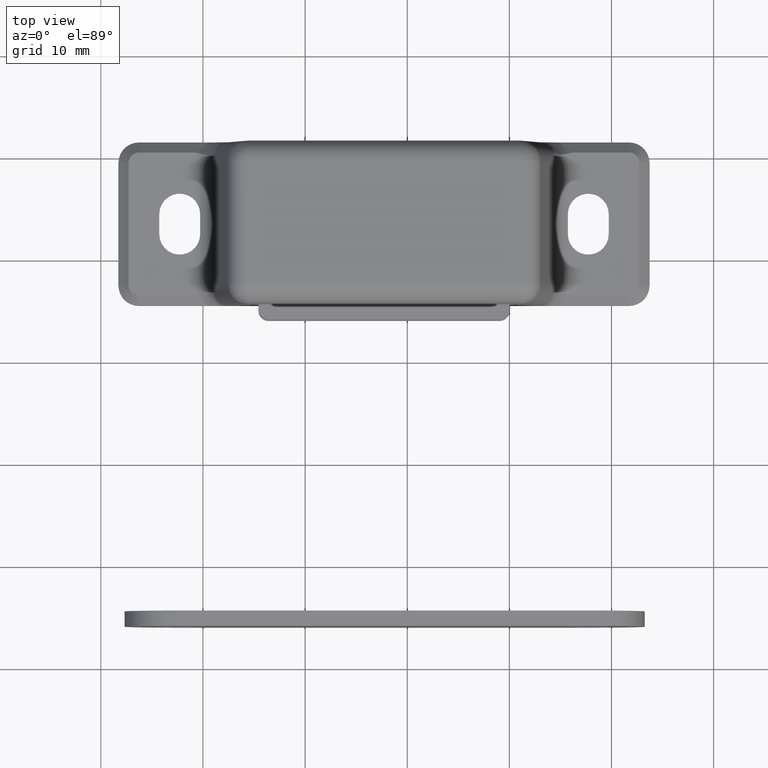
[diagram: clean part render]
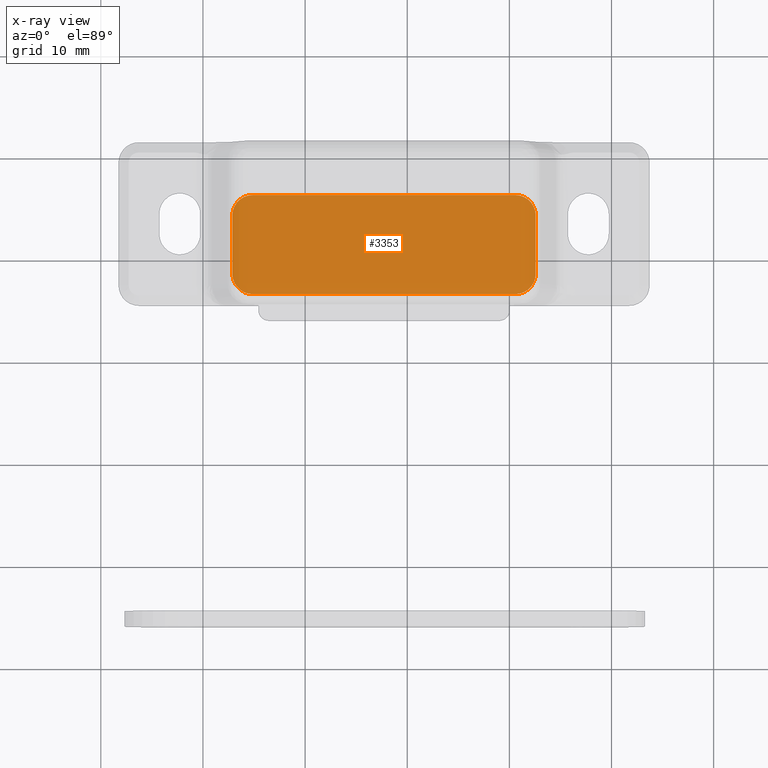
[diagram: x-ray — body ghosted, one internal face saturated and labeled with its STEP entity id]
A machine part, top view, then the same camera in x-ray: the body is ghosted and one INTERNAL B-rep face — a face not visible from any outside direction — is saturated and labeled: STEP entity #3353.
In plain terms, the highlighted planar face has unit normal (0, 0, 1).
Its self-contained STEP definition (entity closure, byte-faithful):
#199=PLANE('',#3654);
#370=FACE_OUTER_BOUND('',#570,.T.);
#570=EDGE_LOOP('',(#2873,#2874,#2875,#2876,#2877,#2878,#2879,#2880));
#869=LINE('',#5984,#1165);
#875=LINE('',#5999,#1171);
#877=LINE('',#6005,#1173);
#878=LINE('',#6007,#1174);
#1165=VECTOR('',#4391,5.7);
#1171=VECTOR('',#4407,5.7);
#1173=VECTOR('',#4415,25.7);
#1174=VECTOR('',#4418,25.7);
#1347=CIRCLE('',#3638,2.);
#1352=CIRCLE('',#3646,2.);
#1353=CIRCLE('',#3648,2.);
#1354=CIRCLE('',#3651,2.);
#1589=VERTEX_POINT('',#5960);
#1590=VERTEX_POINT('',#5961);
#1599=VERTEX_POINT('',#5983);
#1600=VERTEX_POINT('',#5987);
#1601=VERTEX_POINT('',#5991);
#1602=VERTEX_POINT('',#5992);
#1603=VERTEX_POINT('',#5997);
#1604=VERTEX_POINT('',#6001);
#2023=EDGE_CURVE('',#1589,#1590,#1347,.T.);
#2034=EDGE_CURVE('',#1599,#1590,#869,.T.);
#2036=EDGE_CURVE('',#1599,#1600,#1352,.T.);
#2038=EDGE_CURVE('',#1601,#1602,#1353,.T.);
#2042=EDGE_CURVE('',#1601,#1603,#875,.T.);
#2043=EDGE_CURVE('',#1604,#1603,#1354,.T.);
#2045=EDGE_CURVE('',#1604,#1600,#877,.T.);
#2046=EDGE_CURVE('',#1589,#1602,#878,.T.);
#2873=ORIENTED_EDGE('',*,*,#2023,.F.);
#2874=ORIENTED_EDGE('',*,*,#2046,.T.);
#2875=ORIENTED_EDGE('',*,*,#2038,.F.);
#2876=ORIENTED_EDGE('',*,*,#2042,.T.);
#2877=ORIENTED_EDGE('',*,*,#2043,.F.);
#2878=ORIENTED_EDGE('',*,*,#2045,.T.);
#2879=ORIENTED_EDGE('',*,*,#2036,.F.);
#2880=ORIENTED_EDGE('',*,*,#2034,.T.);
#3353=ADVANCED_FACE('',(#370),#199,.F.);
#3638=AXIS2_PLACEMENT_3D('',#5962,#4371,#4372);
#3646=AXIS2_PLACEMENT_3D('',#5988,#4395,#4396);
#3648=AXIS2_PLACEMENT_3D('',#5993,#4400,#4401);
#3651=AXIS2_PLACEMENT_3D('',#6002,#4410,#4411);
#3654=AXIS2_PLACEMENT_3D('',#6008,#4419,#4420);
#4371=DIRECTION('center_axis',(0.,0.,1.));
#4372=DIRECTION('ref_axis',(-0.707106781186548,0.707106781186547,0.));
#4391=DIRECTION('',(-2.28911963840238E-16,1.,0.));
#4395=DIRECTION('center_axis',(0.,0.,1.));
#4396=DIRECTION('ref_axis',(-0.707106781186548,-0.707106781186547,0.));
#4400=DIRECTION('center_axis',(0.,0.,1.));
#4401=DIRECTION('ref_axis',(0.707106781186548,0.707106781186547,0.));
#4407=DIRECTION('',(0.,-1.,0.));
#4410=DIRECTION('center_axis',(0.,0.,1.));
#4411=DIRECTION('ref_axis',(0.707106781186548,-0.707106781186547,0.));
#4415=DIRECTION('',(-1.,0.,0.));
#4418=DIRECTION('',(1.,0.,0.));
#4419=DIRECTION('center_axis',(0.,0.,1.));
#4420=DIRECTION('ref_axis',(1.,0.,0.));
#5960=CARTESIAN_POINT('',(-12.85,2.8,3.));
#5961=CARTESIAN_POINT('',(-14.85,0.800000000000004,3.));
#5962=CARTESIAN_POINT('Origin',(-12.85,0.800000000000005,3.));
#5983=CARTESIAN_POINT('',(-14.85,-4.9,3.));
#5984=CARTESIAN_POINT('',(-14.85,-4.475,3.));
#5987=CARTESIAN_POINT('',(-12.85,-6.9,3.));
#5988=CARTESIAN_POINT('Origin',(-12.85,-4.9,3.));
#5991=CARTESIAN_POINT('',(14.85,0.800000000000005,3.));
#5992=CARTESIAN_POINT('',(12.85,2.8,3.));
#5993=CARTESIAN_POINT('Origin',(12.85,0.800000000000005,3.));
#5997=CARTESIAN_POINT('',(14.85,-4.9,3.));
#5999=CARTESIAN_POINT('',(14.85,0.375000000000005,3.));
#6001=CARTESIAN_POINT('',(12.85,-6.9,3.));
#6002=CARTESIAN_POINT('Origin',(12.85,-4.9,3.));
#6005=CARTESIAN_POINT('',(7.425,-6.9,3.));
#6007=CARTESIAN_POINT('',(-7.425,2.8,3.));
#6008=CARTESIAN_POINT('Origin',(0.,-2.05,3.));